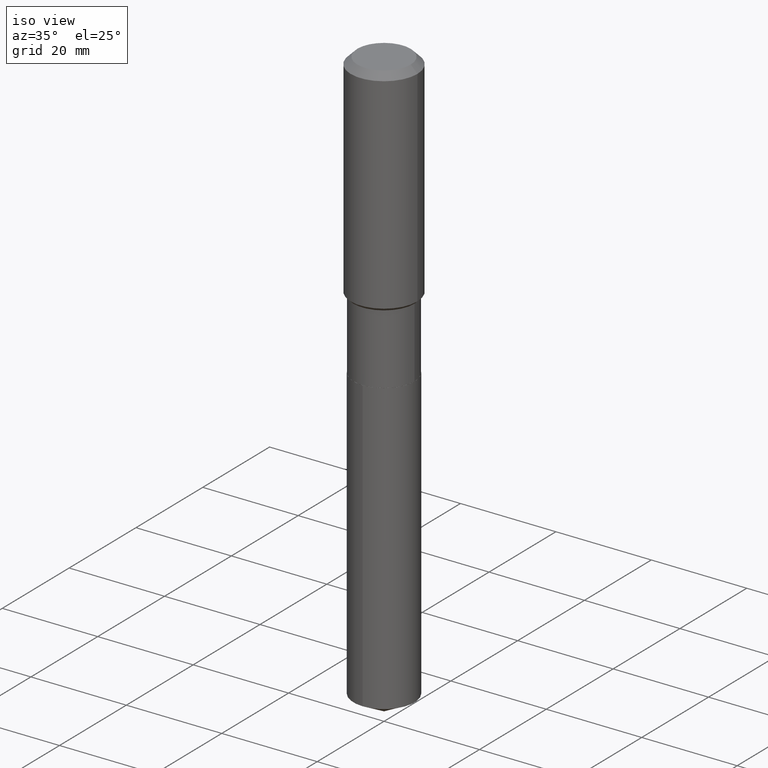
[diagram: clean part render]
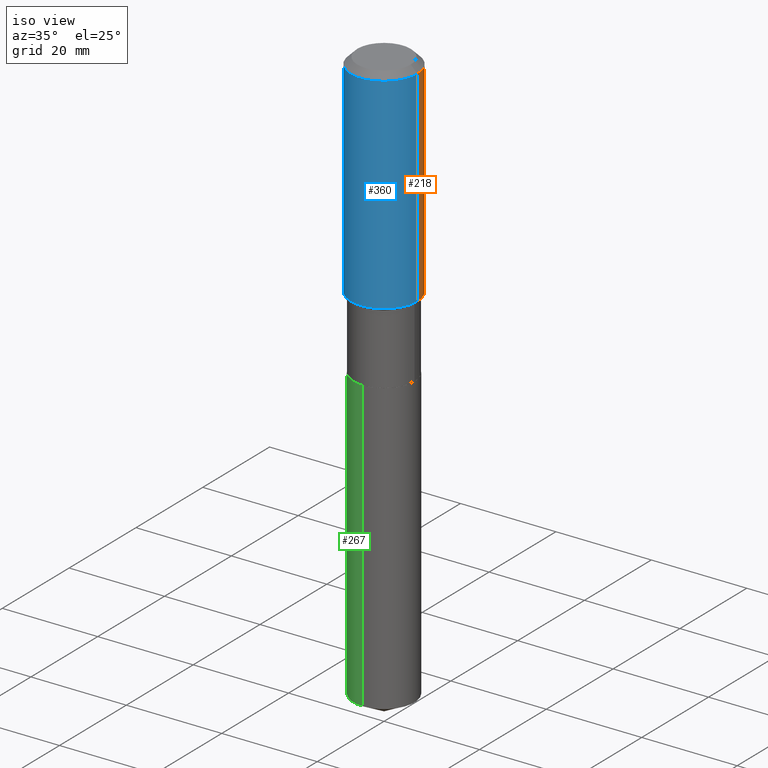
[diagram: same view with three faces highlighted in distinct colors, each labeled with its STEP entity id]
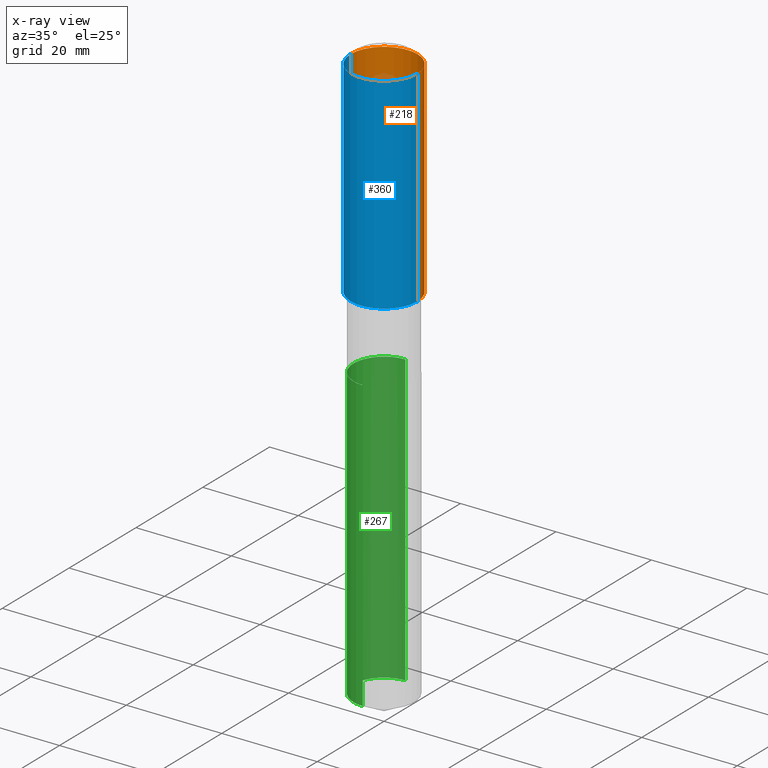
[diagram: x-ray of the same camera — body ghosted, the three highlighted faces saturated]
A machine part, iso view with three faces highlighted in distinct colors.
The next image is the same camera in x-ray (body ghosted, the three faces saturated) — at least one of them is partly hidden behind the body in this view.
Their STEP definitions:

[orange] entity #218 — the highlighted cylindrical surface (partial cylindrical patch) has radius 7.0002 mm, axis along (-0, 0, 1).
#1 = DIRECTION ( 'NONE',  ( -2.445468806185136877E-29, 3.491481338843145188E-15, 1.000000000000000000 ) ) ;
#43 = CARTESIAN_POINT ( 'NONE',  ( 1.347942405969256063E-30, -1.924504513970354330E-16, -0.05512000000000035621 ) ) ;
#68 = LINE ( 'NONE', #116, #111 ) ;
#87 = CARTESIAN_POINT ( 'NONE',  ( -0.2756000000000000116, -1.195023219201267341E-15, -0.05512000000000035621 ) ) ;
#102 = CARTESIAN_POINT ( 'NONE',  ( 0.2756000000000001227, -1.924504513970336137E-15, 1.343874319409360548E-29 ) ) ;
#109 = DIRECTION ( 'NONE',  ( -2.445468806185136597E-29, 3.491481338843145583E-15, 1.000000000000000000 ) ) ;
#111 = VECTOR ( 'NONE', #1, 39.37007874015748143 ) ;
#116 = CARTESIAN_POINT ( 'NONE',  ( -0.2756000000000001227, 1.958255779754836984E-15, -1.355658510874252567E-29 ) ) ;
#122 = VERTEX_POINT ( 'NONE', #183 ) ;
#147 = DIRECTION ( 'NONE',  ( 1.000000000000000000, -6.982962677686267499E-15, 4.876176775795935793E-29 ) ) ;
#169 = CIRCLE ( 'NONE', #233, 0.2756000000000000116 ) ;
#173 = ORIENTED_EDGE ( 'NONE', *, *, #275, .T. ) ;
#183 = CARTESIAN_POINT ( 'NONE',  ( -0.2756000000000002337, -4.155851766760336357E-15, -1.751149999999999762 ) ) ;
#184 = AXIS2_PLACEMENT_3D ( 'NONE', #222, #211, #147 ) ;
#187 = DIRECTION ( 'NONE',  ( 1.000000000000000000, -6.982962677686265922E-15, 0.000000000000000000 ) ) ;
#194 = VERTEX_POINT ( 'NONE', #443 ) ;
#207 = AXIS2_PLACEMENT_3D ( 'NONE', #298, #109, #453 ) ;
#211 = DIRECTION ( 'NONE',  ( -2.445468806185136597E-29, 3.491481338843145583E-15, 1.000000000000000000 ) ) ;
#218 = ADVANCED_FACE ( 'NONE', ( #328 ), #484, .T. ) ;
#222 = CARTESIAN_POINT ( 'NONE',  ( 0.000000000000000000, 0.000000000000000000, 0.000000000000000000 ) ) ;
#224 = CIRCLE ( 'NONE', #207, 0.2756000000000002337 ) ;
#225 = DIRECTION ( 'NONE',  ( -2.445468806185136597E-29, 3.491481338843145583E-15, 1.000000000000000000 ) ) ;
#231 = ORIENTED_EDGE ( 'NONE', *, *, #395, .T. ) ;
#233 = AXIS2_PLACEMENT_3D ( 'NONE', #43, #225, #187 ) ;
#250 = EDGE_CURVE ( 'NONE', #194, #356, #330, .T. ) ;
#255 = DIRECTION ( 'NONE',  ( -2.445468806185136877E-29, 3.491481338843145188E-15, 1.000000000000000000 ) ) ;
#275 = EDGE_CURVE ( 'NONE', #122, #417, #68, .T. ) ;
#298 = CARTESIAN_POINT ( 'NONE',  ( 4.282382699951101143E-29, -6.114107546515173735E-15, -1.751149999999999762 ) ) ;
#302 = VECTOR ( 'NONE', #255, 39.37007874015748143 ) ;
#304 = EDGE_CURVE ( 'NONE', #356, #417, #169, .T. ) ;
#328 = FACE_OUTER_BOUND ( 'NONE', #379, .T. ) ;
#330 = LINE ( 'NONE', #102, #302 ) ;
#356 = VERTEX_POINT ( 'NONE', #455 ) ;
#379 = EDGE_LOOP ( 'NONE', ( #231, #173, #458, #461 ) ) ;
#395 = EDGE_CURVE ( 'NONE', #194, #122, #224, .T. ) ;
#417 = VERTEX_POINT ( 'NONE', #87 ) ;
#443 = CARTESIAN_POINT ( 'NONE',  ( 0.2756000000000002337, -8.038612060485511055E-15, -1.751149999999999762 ) ) ;
#453 = DIRECTION ( 'NONE',  ( 1.000000000000000000, -6.982962677686267499E-15, 0.000000000000000000 ) ) ;
#455 = CARTESIAN_POINT ( 'NONE',  ( 0.2756000000000000116, -2.116954965367370658E-15, -0.05512000000000035621 ) ) ;
#458 = ORIENTED_EDGE ( 'NONE', *, *, #304, .F. ) ;
#461 = ORIENTED_EDGE ( 'NONE', *, *, #250, .F. ) ;
#484 = CYLINDRICAL_SURFACE ( 'NONE', #184, 0.2756000000000001227 ) ;

[blue] entity #360 — the highlighted cylindrical surface (partial cylindrical patch) has radius 7.0002 mm, axis along (-0, 0, 1).
#1 = DIRECTION ( 'NONE',  ( -2.445468806185136877E-29, 3.491481338843145188E-15, 1.000000000000000000 ) ) ;
#19 = DIRECTION ( 'NONE',  ( 1.000000000000000000, -6.982962677686265922E-15, 0.000000000000000000 ) ) ;
#38 = EDGE_CURVE ( 'NONE', #417, #356, #431, .T. ) ;
#68 = LINE ( 'NONE', #116, #111 ) ;
#85 = DIRECTION ( 'NONE',  ( -2.445468806185136597E-29, 3.491481338843145583E-15, 1.000000000000000000 ) ) ;
#87 = CARTESIAN_POINT ( 'NONE',  ( -0.2756000000000000116, -1.195023219201267341E-15, -0.05512000000000035621 ) ) ;
#95 = AXIS2_PLACEMENT_3D ( 'NONE', #166, #85, #19 ) ;
#102 = CARTESIAN_POINT ( 'NONE',  ( 0.2756000000000001227, -1.924504513970336137E-15, 1.343874319409360548E-29 ) ) ;
#111 = VECTOR ( 'NONE', #1, 39.37007874015748143 ) ;
#116 = CARTESIAN_POINT ( 'NONE',  ( -0.2756000000000001227, 1.958255779754836984E-15, -1.355658510874252567E-29 ) ) ;
#122 = VERTEX_POINT ( 'NONE', #183 ) ;
#166 = CARTESIAN_POINT ( 'NONE',  ( 1.347942405969256063E-30, -1.924504513970354330E-16, -0.05512000000000035621 ) ) ;
#181 = DIRECTION ( 'NONE',  ( -2.445468806185136597E-29, 3.491481338843145583E-15, 1.000000000000000000 ) ) ;
#183 = CARTESIAN_POINT ( 'NONE',  ( -0.2756000000000002337, -4.155851766760336357E-15, -1.751149999999999762 ) ) ;
#185 = CARTESIAN_POINT ( 'NONE',  ( 0.000000000000000000, 0.000000000000000000, 0.000000000000000000 ) ) ;
#194 = VERTEX_POINT ( 'NONE', #443 ) ;
#195 = CYLINDRICAL_SURFACE ( 'NONE', #429, 0.2756000000000001227 ) ;
#200 = AXIS2_PLACEMENT_3D ( 'NONE', #365, #181, #374 ) ;
#232 = FACE_OUTER_BOUND ( 'NONE', #472, .T. ) ;
#250 = EDGE_CURVE ( 'NONE', #194, #356, #330, .T. ) ;
#253 = EDGE_CURVE ( 'NONE', #122, #194, #350, .T. ) ;
#255 = DIRECTION ( 'NONE',  ( -2.445468806185136877E-29, 3.491481338843145188E-15, 1.000000000000000000 ) ) ;
#275 = EDGE_CURVE ( 'NONE', #122, #417, #68, .T. ) ;
#302 = VECTOR ( 'NONE', #255, 39.37007874015748143 ) ;
#330 = LINE ( 'NONE', #102, #302 ) ;
#344 = ORIENTED_EDGE ( 'NONE', *, *, #38, .F. ) ;
#345 = DIRECTION ( 'NONE',  ( -2.445468806185136597E-29, 3.491481338843145583E-15, 1.000000000000000000 ) ) ;
#350 = CIRCLE ( 'NONE', #200, 0.2756000000000002337 ) ;
#356 = VERTEX_POINT ( 'NONE', #455 ) ;
#360 = ADVANCED_FACE ( 'NONE', ( #232 ), #195, .T. ) ;
#365 = CARTESIAN_POINT ( 'NONE',  ( 4.282382699951101143E-29, -6.114107546515173735E-15, -1.751149999999999762 ) ) ;
#374 = DIRECTION ( 'NONE',  ( 1.000000000000000000, -6.982962677686267499E-15, 0.000000000000000000 ) ) ;
#412 = ORIENTED_EDGE ( 'NONE', *, *, #253, .T. ) ;
#417 = VERTEX_POINT ( 'NONE', #87 ) ;
#423 = ORIENTED_EDGE ( 'NONE', *, *, #250, .T. ) ;
#429 = AXIS2_PLACEMENT_3D ( 'NONE', #185, #345, #448 ) ;
#431 = CIRCLE ( 'NONE', #95, 0.2756000000000000116 ) ;
#435 = ORIENTED_EDGE ( 'NONE', *, *, #275, .F. ) ;
#443 = CARTESIAN_POINT ( 'NONE',  ( 0.2756000000000002337, -8.038612060485511055E-15, -1.751149999999999762 ) ) ;
#448 = DIRECTION ( 'NONE',  ( 1.000000000000000000, -6.982962677686267499E-15, 4.876176775795935793E-29 ) ) ;
#455 = CARTESIAN_POINT ( 'NONE',  ( 0.2756000000000000116, -2.116954965367370658E-15, -0.05512000000000035621 ) ) ;
#472 = EDGE_LOOP ( 'NONE', ( #435, #412, #423, #344 ) ) ;

[green] entity #267 — the highlighted cylindrical surface (partial cylindrical patch) has radius 6.3995 mm, axis along (-0, 0, 1).
#33 = DIRECTION ( 'NONE',  ( -2.445212377427573350E-29, 3.491848559418994471E-15, 1.000000000000000000 ) ) ;
#41 = FACE_OUTER_BOUND ( 'NONE', #242, .T. ) ;
#50 = DIRECTION ( 'NONE',  ( -6.982962677686265922E-15, -1.000000000000000000, 3.252845398290450098E-15 ) ) ;
#60 = CARTESIAN_POINT ( 'NONE',  ( 1.790212422747629662E-15, 0.2519499999999917361, -2.354300000000000725 ) ) ;
#61 = AXIS2_PLACEMENT_3D ( 'NONE', #317, #349, #50 ) ;
#69 = VECTOR ( 'NONE', #254, 39.37007874015748143 ) ;
#75 = CARTESIAN_POINT ( 'NONE',  ( 1.790212422747688433E-15, 0.2519499999999834650, -4.747935808692891335 ) ) ;
#76 = EDGE_CURVE ( 'NONE', #335, #149, #162, .T. ) ;
#81 = EDGE_CURVE ( 'NONE', #266, #342, #104, .T. ) ;
#90 = DIRECTION ( 'NONE',  ( -2.445212377427573350E-29, 3.491848559418994471E-15, 1.000000000000000000 ) ) ;
#97 = LINE ( 'NONE', #60, #69 ) ;
#104 = CIRCLE ( 'NONE', #61, 0.2519500000000000073 ) ;
#149 = VERTEX_POINT ( 'NONE', #292 ) ;
#155 = CARTESIAN_POINT ( 'NONE',  ( -1.759357446642997213E-15, -0.2519500000000082229, -2.354299999999999393 ) ) ;
#156 = ORIENTED_EDGE ( 'NONE', *, *, #290, .T. ) ;
#162 = CIRCLE ( 'NONE', #327, 0.2519500000000000073 ) ;
#190 = LINE ( 'NONE', #155, #452 ) ;
#193 = DIRECTION ( 'NONE',  ( -6.982962677686265922E-15, -1.000000000000000000, 3.252845398290450098E-15 ) ) ;
#240 = EDGE_CURVE ( 'NONE', #335, #266, #97, .T. ) ;
#242 = EDGE_LOOP ( 'NONE', ( #381, #277, #156, #359 ) ) ;
#254 = DIRECTION ( 'NONE',  ( -2.445212377427573350E-29, 3.491848559418994471E-15, 1.000000000000000000 ) ) ;
#260 = DIRECTION ( 'NONE',  ( -2.445212377427573350E-29, 3.491848559418994471E-15, 1.000000000000000000 ) ) ;
#266 = VERTEX_POINT ( 'NONE', #370 ) ;
#267 = ADVANCED_FACE ( 'NONE', ( #41 ), #341, .T. ) ;
#277 = ORIENTED_EDGE ( 'NONE', *, *, #76, .T. ) ;
#290 = EDGE_CURVE ( 'NONE', #149, #342, #190, .T. ) ;
#292 = CARTESIAN_POINT ( 'NONE',  ( -1.759357446642938640E-15, -0.2519500000000166051, -4.747935808692888671 ) ) ;
#317 = CARTESIAN_POINT ( 'NONE',  ( 5.757367210401667077E-29, -8.219994516038417503E-15, -2.354300000000000281 ) ) ;
#327 = AXIS2_PLACEMENT_3D ( 'NONE', #466, #90, #463 ) ;
#335 = VERTEX_POINT ( 'NONE', #75 ) ;
#341 = CYLINDRICAL_SURFACE ( 'NONE', #387, 0.2519500000000000073 ) ;
#342 = VERTEX_POINT ( 'NONE', #485 ) ;
#349 = DIRECTION ( 'NONE',  ( -2.445212377427573350E-29, 3.491848559418994471E-15, 1.000000000000000000 ) ) ;
#359 = ORIENTED_EDGE ( 'NONE', *, *, #81, .F. ) ;
#370 = CARTESIAN_POINT ( 'NONE',  ( 1.790212422747688433E-15, 0.2519499999999917361, -2.354300000000000725 ) ) ;
#381 = ORIENTED_EDGE ( 'NONE', *, *, #240, .F. ) ;
#387 = AXIS2_PLACEMENT_3D ( 'NONE', #408, #260, #193 ) ;
#408 = CARTESIAN_POINT ( 'NONE',  ( 5.757367210401667077E-29, -8.219994516038417503E-15, -2.354300000000000281 ) ) ;
#452 = VECTOR ( 'NONE', #33, 39.37007874015748143 ) ;
#463 = DIRECTION ( 'NONE',  ( -6.982962677686265922E-15, -1.000000000000000000, 4.337127197720600657E-15 ) ) ;
#466 = CARTESIAN_POINT ( 'NONE',  ( 1.161031511687138053E-28, -1.657820826639640722E-14, -4.747935808692890447 ) ) ;
#485 = CARTESIAN_POINT ( 'NONE',  ( -1.759357446642997213E-15, -0.2519500000000082229, -2.354299999999999393 ) ) ;